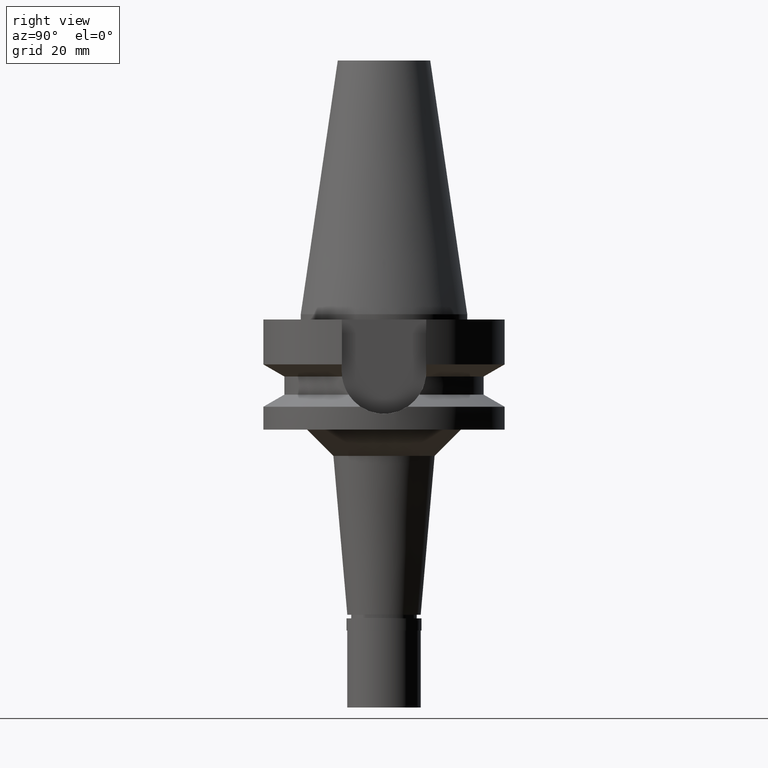
[diagram: clean part render]
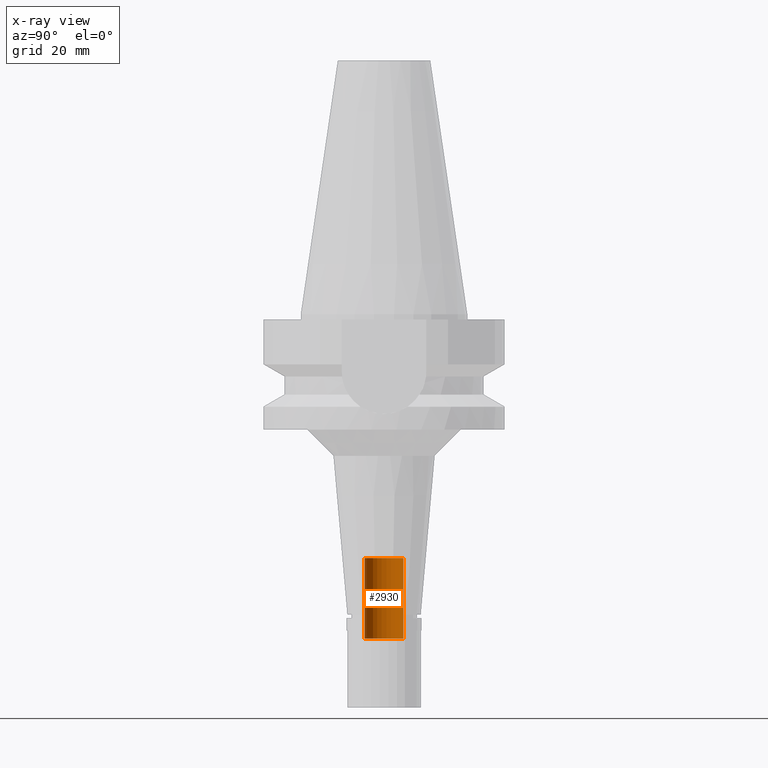
[diagram: x-ray — body ghosted, one internal face saturated and labeled with its STEP entity id]
A machine part, right view, then the same camera in x-ray: the body is ghosted and one INTERNAL B-rep face — a face not visible from any outside direction — is saturated and labeled: STEP entity #2930.
In plain terms, the highlighted cylindrical surface (edge-blend (fillet) strip) has radius 3.7 mm, axis along (0, 0, -1).
Its self-contained STEP definition (entity closure, byte-faithful):
#57 = CARTESIAN_POINT ( 'NONE',  ( 0.0000000000000000000, -3.700000000000000178, -46.50000000000000000 ) ) ;
#62 = VERTEX_POINT ( 'NONE', #57 ) ;
#66 = CARTESIAN_POINT ( 'NONE',  ( 0.0000000000000000000, -3.700000000000000178, -61.85595815778999906 ) ) ;
#84 = DIRECTION ( 'NONE',  ( 0.0000000000000000000, -1.000000000000000000, 0.0000000000000000000 ) ) ;
#117 = ORIENTED_EDGE ( 'NONE', *, *, #873, .T. ) ;
#124 = CYLINDRICAL_SURFACE ( 'NONE', #2813, 3.700000000000000178 ) ;
#153 = VECTOR ( 'NONE', #908, 1000.000000000000000 ) ;
#181 = EDGE_LOOP ( 'NONE', ( #117, #1257, #2889, #2385 ) ) ;
#361 = EDGE_CURVE ( 'NONE', #421, #2540, #879, .T. ) ;
#421 = VERTEX_POINT ( 'NONE', #653 ) ;
#458 = AXIS2_PLACEMENT_3D ( 'NONE', #747, #2338, #84 ) ;
#556 = DIRECTION ( 'NONE',  ( 0.0000000000000000000, 0.0000000000000000000, -1.000000000000000000 ) ) ;
#625 = VERTEX_POINT ( 'NONE', #66 ) ;
#632 = DIRECTION ( 'NONE',  ( 0.0000000000000000000, 1.000000000000000000, 0.0000000000000000000 ) ) ;
#653 = CARTESIAN_POINT ( 'NONE',  ( 0.0000000000000000000, 3.700000000000000178, -61.85595815778999906 ) ) ;
#747 = CARTESIAN_POINT ( 'NONE',  ( 0.0000000000000000000, 0.0000000000000000000, -61.85595815778999906 ) ) ;
#781 = DIRECTION ( 'NONE',  ( 0.0000000000000000000, -1.000000000000000000, 0.0000000000000000000 ) ) ;
#817 = CARTESIAN_POINT ( 'NONE',  ( 0.0000000000000000000, 1.890487263844000250E-14, 54.37000000000000455 ) ) ;
#873 = EDGE_CURVE ( 'NONE', #2540, #62, #1940, .T. ) ;
#879 = LINE ( 'NONE', #1564, #153 ) ;
#908 = DIRECTION ( 'NONE',  ( 0.0000000000000000000, 1.558770098547999925E-14, 1.000000000000000000 ) ) ;
#1257 = ORIENTED_EDGE ( 'NONE', *, *, #1974, .F. ) ;
#1413 = EDGE_CURVE ( 'NONE', #625, #421, #2293, .T. ) ;
#1535 = LINE ( 'NONE', #2911, #2222 ) ;
#1564 = CARTESIAN_POINT ( 'NONE',  ( 0.0000000000000000000, 3.700000000000000178, -61.85595815778999906 ) ) ;
#1714 = DIRECTION ( 'NONE',  ( 0.0000000000000000000, -1.518282563521000250E-14, 1.000000000000000000 ) ) ;
#1940 = CIRCLE ( 'NONE', #2384, 3.700000000000000178 ) ;
#1974 = EDGE_CURVE ( 'NONE', #625, #62, #1535, .T. ) ;
#2033 = CARTESIAN_POINT ( 'NONE',  ( 0.0000000000000000000, 3.700000000000000178, -46.50000000000000000 ) ) ;
#2222 = VECTOR ( 'NONE', #1714, 1000.000000000000000 ) ;
#2268 = CARTESIAN_POINT ( 'NONE',  ( 0.0000000000000000000, 1.890487263844000250E-14, -46.50000000000000000 ) ) ;
#2293 = CIRCLE ( 'NONE', #458, 3.700000000000000178 ) ;
#2338 = DIRECTION ( 'NONE',  ( 0.0000000000000000000, 0.0000000000000000000, -1.000000000000000000 ) ) ;
#2384 = AXIS2_PLACEMENT_3D ( 'NONE', #2268, #2661, #632 ) ;
#2385 = ORIENTED_EDGE ( 'NONE', *, *, #361, .T. ) ;
#2540 = VERTEX_POINT ( 'NONE', #2033 ) ;
#2661 = DIRECTION ( 'NONE',  ( 0.0000000000000000000, 0.0000000000000000000, 1.000000000000000000 ) ) ;
#2813 = AXIS2_PLACEMENT_3D ( 'NONE', #817, #556, #781 ) ;
#2856 = FACE_OUTER_BOUND ( 'NONE', #181, .T. ) ;
#2889 = ORIENTED_EDGE ( 'NONE', *, *, #1413, .T. ) ;
#2911 = CARTESIAN_POINT ( 'NONE',  ( 0.0000000000000000000, -3.700000000000000178, -61.85595815778999906 ) ) ;
#2930 = ADVANCED_FACE ( 'NONE', ( #2856 ), #124, .F. ) ;